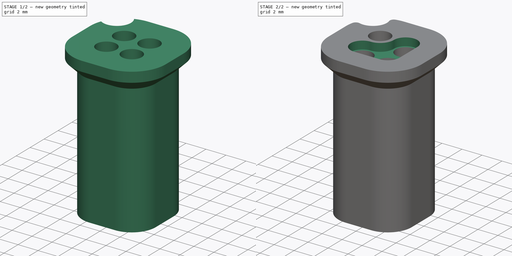
[diagram: build sequence overview — one tinted view per stage of 2, left to right]
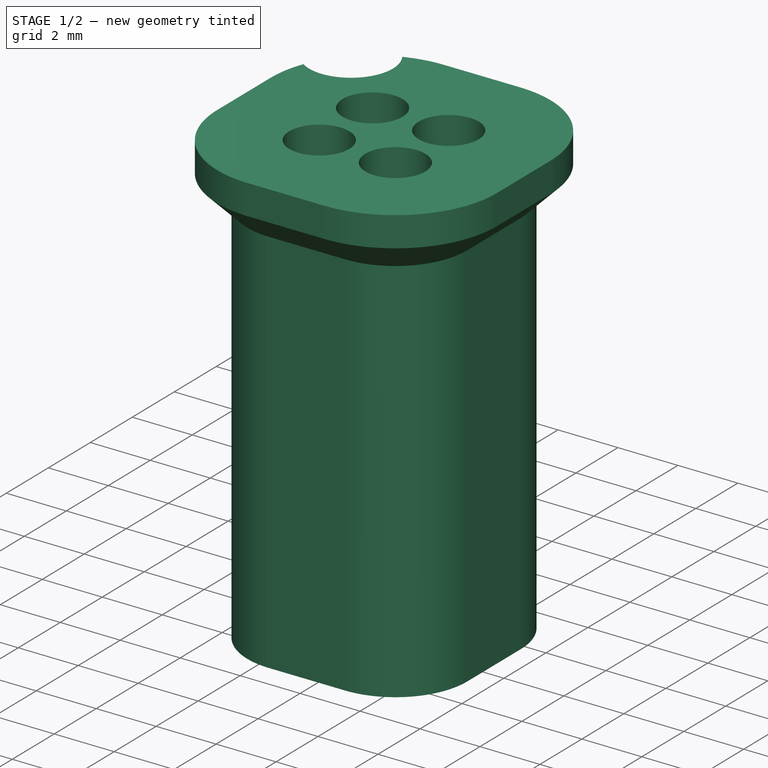
[diagram: stage 1 of 2 — iso view after this stage's code; geometry added in this stage tinted green]
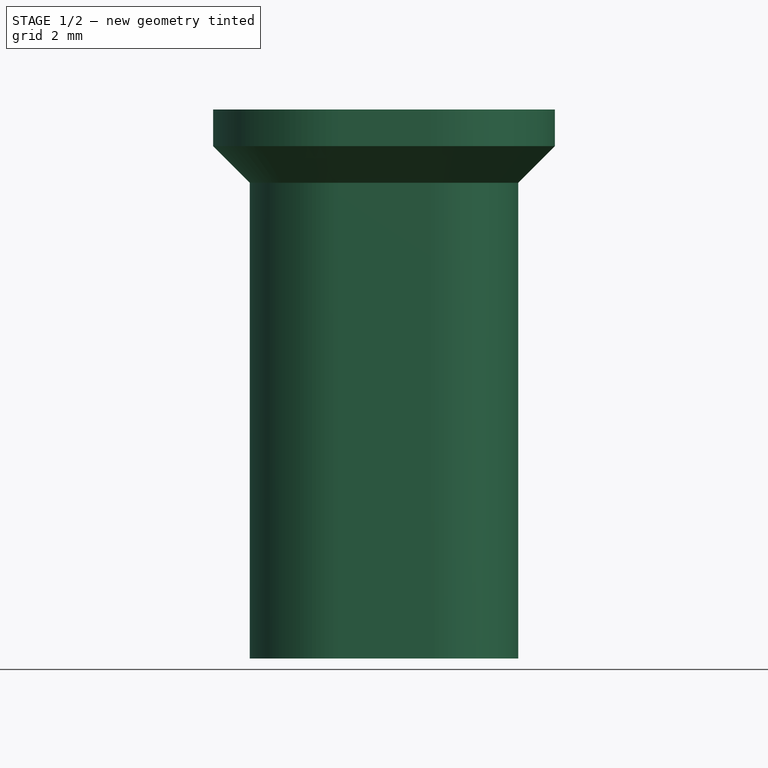
[diagram: stage 1 of 2 — front view after this stage's code; geometry added in this stage tinted green]
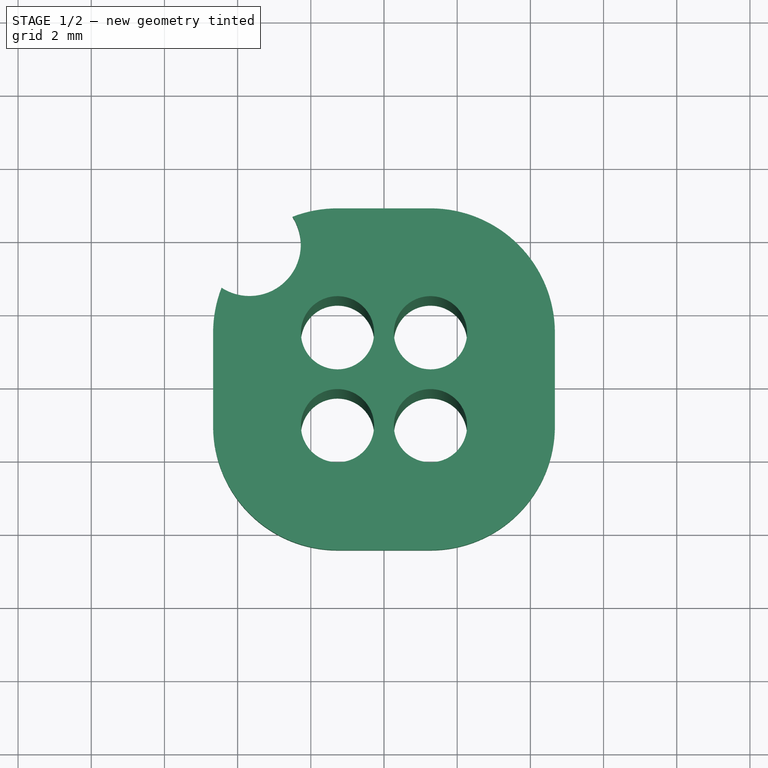
[diagram: stage 1 of 2 — top view after this stage's code; geometry added in this stage tinted green]
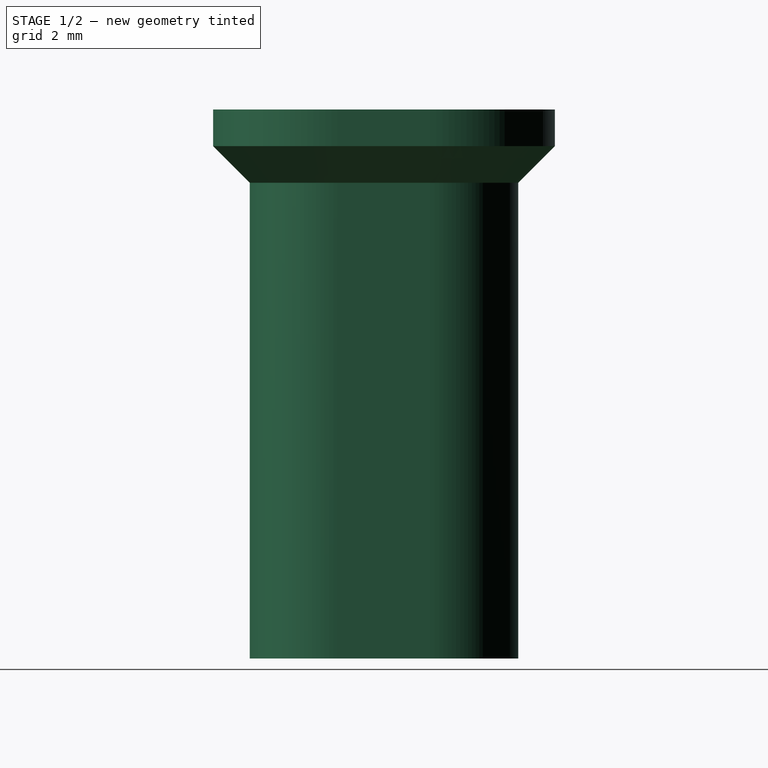
[diagram: stage 1 of 2 — right view after this stage's code; geometry added in this stage tinted green]
FCSTD DOCUMENT  (FreeCAD 0.20R29410 (Git))
Label: DabiProgAdapter
License: All rights reserved
LicenseURL: http://en.wikipedia.org/wiki/All_rights_reserved
objects: Sketcher::SketchObject×7, PartDesign::Pocket×2, Spreadsheet::Sheet×1, PartDesign::AdditiveLoft×1, PartDesign::Fillet×1, PartDesign::Body×1
note: 16 computed .brp shape members not serialized (recipe doc carries the construction recipe); baked Part::Feature solids carry a one-line shape summary decoded from their .brp

FEATURE [Spreadsheet::Sheet] Spreadsheet
  cells = B2=Spacing; C2(Spacing)==2.54mm; B3=PinRadius; C3(PinRadius)==1mm; B4=PinRadius_Extended; C4(PinRadius_Extended)==1.18mm; B5=BaseRadius; C5(BaseRadius)==2.4mm; B6=BaseRadius_Top; C6(BaseRadius_Top)==3.4mm; B7=BaseHeight; C7(BaseHeight)==13mm; B8=BaseTopHeight; C8(BaseTopHeight)==1mm; B9=TopDepressionHeight; C9(TopDepressionHeight)==0.8mm
FEATURE [Sketcher::SketchObject] Sketch  label="Template"
  FullyConstrained = true
  MapMode = 5
  Support = -> [XY_Plane]
  expr: Constraints[18] = <<Spreadsheet>>.PinRadius
  expr: Constraints[24] = <<Spreadsheet>>.BaseRadius
  expr: Constraints[63] = <<Spreadsheet>>.PinRadius_Extended
  expr: Constraints[76] = <<Spreadsheet>>.BaseRadius_Top
  expr: Constraints[86] = (<<Spreadsheet>>.BaseRadius_Top - <<Spreadsheet>>.BaseRadius) * 1.4
  expr: Constraints[9] = <<Spreadsheet>>.Spacing
  sketch-geometry (32):
    g0: LineSegment StartX=-1.27 StartY=1.27 StartZ=0 EndX=1.27 EndY=1.27 EndZ=0
    g1: LineSegment StartX=1.27 StartY=1.27 StartZ=0 EndX=1.27 EndY=-1.27 EndZ=0
    g2: LineSegment StartX=1.27 StartY=-1.27 StartZ=0 EndX=-1.27 EndY=-1.27 EndZ=0
    g3: LineSegment StartX=-1.27 StartY=-1.27 StartZ=0 EndX=-1.27 EndY=1.27 EndZ=0
    g4: Circle CenterX=-1.27 CenterY=1.27 CenterZ=0 NormalX=0 NormalY=0 NormalZ=1 AngleXU=0 Radius=1
    g5: Circle CenterX=1.27 CenterY=1.27 CenterZ=0 NormalX=0 NormalY=0 NormalZ=1 AngleXU=0 Radius=1
    g6: Circle CenterX=1.27 CenterY=-1.27 CenterZ=0 NormalX=0 NormalY=0 NormalZ=1 AngleXU=0 Radius=1
    g7: Circle CenterX=-1.27 CenterY=-1.27 CenterZ=0 NormalX=0 NormalY=0 NormalZ=1 AngleXU=0 Radius=1
    g8: ArcOfCircle CenterX=1.27 CenterY=1.27 CenterZ=0 NormalX=0 NormalY=0 NormalZ=1 AngleXU=0 Radius=2.4 StartAngle=-1.528e-13 EndAngle=1.5708
    g9: ArcOfCircle CenterX=1.27 CenterY=-1.27 CenterZ=0 NormalX=0 NormalY=0 NormalZ=1 AngleXU=0 Radius=2.4 StartAngle=4.71239 EndAngle=6.28319
    g10: ArcOfCircle CenterX=-1.27 CenterY=-1.27 CenterZ=0 NormalX=0 NormalY=0 NormalZ=1 AngleXU=0 Radius=2.4 StartAngle=3.14159 EndAngle=4.71239
    g11: LineSegment StartX=3.67 StartY=1.27 StartZ=0 EndX=3.67 EndY=-1.27 EndZ=0
    g12: LineSegment StartX=1.27 StartY=-3.67 StartZ=0 EndX=-1.27 EndY=-3.67 EndZ=0
    g13: LineSegment StartX=-3.67 StartY=-1.27 StartZ=0 EndX=-3.67 EndY=1.27 EndZ=0
    g14: LineSegment StartX=1.27 StartY=3.67 StartZ=0 EndX=-1.27 EndY=3.67 EndZ=0
    g15: ArcOfCircle CenterX=1.27 CenterY=1.27 CenterZ=0 NormalX=0 NormalY=0 NormalZ=1 AngleXU=0 Radius=3.4 StartAngle=-1.075e-13 EndAngle=1.5708
    g16: ArcOfCircle CenterX=1.27 CenterY=-1.27 CenterZ=0 NormalX=0 NormalY=0 NormalZ=1 AngleXU=0 Radius=3.4 StartAngle=4.71239 EndAngle=6.28319
    g17: ArcOfCircle CenterX=-1.27 CenterY=-1.27 CenterZ=0 NormalX=0 NormalY=0 NormalZ=1 AngleXU=0 Radius=3.4 StartAngle=3.14159 EndAngle=4.71239
    g18: LineSegment StartX=4.67 StartY=1.27 StartZ=0 EndX=4.67 EndY=-1.27 EndZ=0
    g19: LineSegment StartX=-1.27 StartY=-4.67 StartZ=0 EndX=1.27 EndY=-4.67 EndZ=0
    g20: LineSegment StartX=-4.67 StartY=-1.27 StartZ=0 EndX=-4.67 EndY=1.27 EndZ=0
    g21: LineSegment StartX=-1.27 StartY=4.67 StartZ=0 EndX=1.27 EndY=4.67 EndZ=0
    g22: ArcOfCircle CenterX=1.27 CenterY=1.27 CenterZ=0 NormalX=0 NormalY=0 NormalZ=1 AngleXU=0 Radius=1.18 StartAngle=-3.215e-13 EndAngle=3.14159
    g23: ArcOfCircle CenterX=1.27 CenterY=-1.27 CenterZ=0 NormalX=0 NormalY=0 NormalZ=1 AngleXU=0 Radius=1.18 StartAngle=4.71239 EndAngle=6.28319
    g24: ArcOfCircle CenterX=-1.27 CenterY=-1.27 CenterZ=0 NormalX=0 NormalY=0 NormalZ=1 AngleXU=0 Radius=1.18 StartAngle=1.5708 EndAngle=4.71239
    g25: LineSegment StartX=2.45 StartY=1.27 StartZ=0 EndX=2.45 EndY=-1.27 EndZ=0
    g26: LineSegment StartX=-1.27 StartY=-2.45 StartZ=0 EndX=1.27 EndY=-2.45 EndZ=0
    g27: ArcOfCircle CenterX=-1.27 CenterY=1.27 CenterZ=0 NormalX=0 NormalY=0 NormalZ=1 AngleXU=0 Radius=1.36 StartAngle=4.71239 EndAngle=6.28319
    g28: ArcOfCircle CenterX=-1.27 CenterY=1.27 CenterZ=0 NormalX=0 NormalY=0 NormalZ=1 AngleXU=0 Radius=2.4 StartAngle=1.5708 EndAngle=3.14159
    g29: ArcOfCircle CenterX=-1.27 CenterY=1.27 CenterZ=0 NormalX=0 NormalY=0 NormalZ=1 AngleXU=0 Radius=3.4 StartAngle=1.5708 EndAngle=3.14159
    g30: ArcOfCircle CenterX=-3.67416 CenterY=3.67416 CenterZ=0 NormalX=0 NormalY=0 NormalZ=1 AngleXU=0 Radius=1.4 StartAngle=4.13436 EndAngle=6.86122
    g31: LineSegment StartX=-3.67416 StartY=3.67416 StartZ=0 EndX=1.27 EndY=-1.27 EndZ=0
  constraints (91):
    c: Coincident(g0,g1)
    c: Coincident(g1,g2)
    c: Coincident(g2,g3)
    c: Coincident(g3,g0)
    c: Horizontal(g0)
    c: Horizontal(g2)
    c: Vertical(g1)
    c: Vertical(g3)
    c: Equal(g0,g3)
    c: DistanceX(g0,g0) = 2.54
    c: Symmetric(g2,g0,g-1)  '__ANCHOR__'
    c: Coincident(g4,g0)
    c: Coincident(g5,g0)
    c: Coincident(g6,g1)
    c: Coincident(g7,g2)
    c: Equal(g4,g5)
    c: Equal(g5,g6)
    c: Equal(g6,g7)
    c: Radius(g4) = 1
    c: Coincident(g8,g0)
    c: Coincident(g9,g1)
    c: Coincident(g10,g2)
    c: Equal(g8,g9)
    c: Equal(g9,g10)
    c: Radius(g8) = 2.4
    c: PointOnObject(g8,g1)
    c: PointOnObject(g9,g1)
    c: PointOnObject(g9,g2)
    c: PointOnObject(g10,g2)
    c: PointOnObject(g10,g3)
    c: PointOnObject(g8,g0)
    c: Coincident(g11,g8)
    c: Coincident(g11,g9)
    c: Coincident(g12,g9)
    c: Coincident(g12,g10)
    c: Coincident(g13,g10)
    c: Vertical(g13)
    c: Coincident(g14,g8)
    c: Coincident(g15,g0)
    c: Coincident(g16,g1)
    c: Coincident(g17,g2)
    c: Equal(g17,g16)
    c: Equal(g16,g15)
    c: Coincident(g18,g15)
    c: Coincident(g18,g16)
    c: Coincident(g19,g17)
    c: Coincident(g19,g16)
    c: Horizontal(g19)
    c: PointOnObject(g15,g0)
    c: PointOnObject(g16,g2)
    c: PointOnObject(g17,g2)
    c: PointOnObject(g17,g3)
    c: Coincident(g20,g17)
    c: Coincident(g21,g15)
    c: Coincident(g22,g5)
    c: Coincident(g23,g6)
    c: Coincident(g24,g7)
    c: Equal(g24,g23)
    c: Equal(g23,g22)
    c: PointOnObject(g22,g0)
    c: PointOnObject(g23,g2)
    c: Coincident(g25,g22)
    c: Coincident(g25,g23)
    c: Radius(g24) = 1.18
    c: PointOnObject(g24,g3)
    c: PointOnObject(g23,g1)
    c: PointOnObject(g24,g3)
    c: Coincident(g26,g24)
    c: Coincident(g26,g23)
    c: Tangent(g27,g24) = 1.5708
    c: Tangent(g27,g22) = 1.5708
    c: Coincident(g28,g4)
    c: PointOnObject(g28,g0)
    c: PointOnObject(g28,g3)
    c: Coincident(g13,g28)
    c: Coincident(g14,g28)
    c: Radius(g15) = 3.4
    c: Coincident(g29,g4)
    c: Coincident(g29,g21)
    c: Coincident(g29,g20)
    c: PointOnObject(g20,g0)
    c: PointOnObject(g21,g3)
    c: Equal(g29,g17)
    c: PointOnObject(g15,g1)
    c: Coincident(g31,g6)
    c: PointOnObject(g4,g31)
    c: Radius(g30) = 1.4
    c: PointOnObject(g31,g29)
    c: Coincident(g30,g31)
    c: PointOnObject(g30,g29)
    c: PointOnObject(g30,g29)
FEATURE [Sketcher::SketchObject] Sketch001
  ExternalGeometry = -> [Sketch]
  FullyConstrained = true
  MapMode = 5
  Support = -> [XY_Plane]
  sketch-geometry (12):
    g0: Circle CenterX=-1.27 CenterY=1.27 CenterZ=0 NormalX=0 NormalY=0 NormalZ=1 AngleXU=0 Radius=1
    g1: Circle CenterX=1.27 CenterY=1.27 CenterZ=0 NormalX=0 NormalY=0 NormalZ=1 AngleXU=0 Radius=1
    g2: Circle CenterX=1.27 CenterY=-1.27 CenterZ=0 NormalX=0 NormalY=0 NormalZ=1 AngleXU=0 Radius=1
    g3: Circle CenterX=-1.27 CenterY=-1.27 CenterZ=0 NormalX=0 NormalY=0 NormalZ=1 AngleXU=0 Radius=1
    g4: ArcOfCircle CenterX=-1.27 CenterY=1.27 CenterZ=0 NormalX=0 NormalY=0 NormalZ=1 AngleXU=0 Radius=2.4 StartAngle=1.5708 EndAngle=3.14159
    g5: ArcOfCircle CenterX=1.27 CenterY=1.27 CenterZ=0 NormalX=0 NormalY=0 NormalZ=1 AngleXU=0 Radius=2.4 StartAngle=2.6288e-12 EndAngle=1.5708
    g6: ArcOfCircle CenterX=1.27 CenterY=-1.27 CenterZ=0 NormalX=0 NormalY=0 NormalZ=1 AngleXU=0 Radius=2.4 StartAngle=4.71239 EndAngle=6.28319
    g7: ArcOfCircle CenterX=-1.27 CenterY=-1.27 CenterZ=0 NormalX=0 NormalY=0 NormalZ=1 AngleXU=0 Radius=2.4 StartAngle=3.14159 EndAngle=4.71239
    g8: LineSegment StartX=-3.67 StartY=1.27 StartZ=0 EndX=-3.67 EndY=-1.27 EndZ=0
    g9: LineSegment StartX=-1.27 StartY=3.67 StartZ=0 EndX=1.27 EndY=3.67 EndZ=0
    g10: LineSegment StartX=3.67 StartY=1.27 StartZ=0 EndX=3.67 EndY=-1.27 EndZ=0
    g11: LineSegment StartX=-1.27 StartY=-3.67 StartZ=0 EndX=1.27 EndY=-3.67 EndZ=0
  constraints (28):
    c: Coincident(g0,g-8)
    c: Coincident(g1,g-9)
    c: Coincident(g2,g-10)
    c: Coincident(g3,g-7)
    c: Equal(g-8,g0)
    c: Equal(g-7,g3)
    c: Equal(g-10,g2)
    c: Equal(g-9,g1)
    c: Coincident(g4,g-3)
    c: Coincident(g4,g-3)
    c: Coincident(g5,g-4)
    c: Coincident(g5,g-4)
    c: Coincident(g6,g-5)
    c: Coincident(g6,g-5)
    c: Coincident(g7,g-6)
    c: Coincident(g7,g-6)
    c: Equal(g-3,g4)
    c: Equal(g-4,g5)
    c: Equal(g-5,g6)
    c: Equal(g-6,g7)
    c: Coincident(g8,g4)
    c: Coincident(g8,g7)
    c: Coincident(g9,g4)
    c: Coincident(g9,g5)
    c: Coincident(g10,g5)
    c: Coincident(g10,g6)
    c: Coincident(g11,g7)
    c: Coincident(g11,g6)
FEATURE [Sketcher::SketchObject] Sketch002
  AttachmentOffset = pos=(0,0,13) rot=(0,0,1;0rad)
  ExternalGeometry = -> [Sketch]
  FullyConstrained = true
  MapMode = 5
  Placement = pos=(0,0,13) rot=(0,0,1;0rad)
  Support = -> [XY_Plane]
  expr: .AttachmentOffset.Base.z = <<Spreadsheet>>.BaseHeight
  sketch-geometry (12):
    g0: Circle CenterX=-1.27 CenterY=1.27 CenterZ=0 NormalX=0 NormalY=0 NormalZ=1 AngleXU=0 Radius=1
    g1: Circle CenterX=1.27 CenterY=1.27 CenterZ=0 NormalX=0 NormalY=0 NormalZ=1 AngleXU=0 Radius=1
    g2: Circle CenterX=1.27 CenterY=-1.27 CenterZ=0 NormalX=0 NormalY=0 NormalZ=1 AngleXU=0 Radius=1
    g3: Circle CenterX=-1.27 CenterY=-1.27 CenterZ=0 NormalX=0 NormalY=0 NormalZ=1 AngleXU=0 Radius=1
    g4: ArcOfCircle CenterX=-1.27 CenterY=1.27 CenterZ=0 NormalX=0 NormalY=0 NormalZ=1 AngleXU=0 Radius=2.4 StartAngle=1.5708 EndAngle=3.14159
    g5: ArcOfCircle CenterX=1.27 CenterY=1.27 CenterZ=0 NormalX=0 NormalY=0 NormalZ=1 AngleXU=0 Radius=2.4 StartAngle=2.6288e-12 EndAngle=1.5708
    g6: ArcOfCircle CenterX=1.27 CenterY=-1.27 CenterZ=0 NormalX=0 NormalY=0 NormalZ=1 AngleXU=0 Radius=2.4 StartAngle=4.71239 EndAngle=6.28319
    g7: ArcOfCircle CenterX=-1.27 CenterY=-1.27 CenterZ=0 NormalX=0 NormalY=0 NormalZ=1 AngleXU=0 Radius=2.4 StartAngle=3.14159 EndAngle=4.71239
    g8: LineSegment StartX=-3.67 StartY=1.27 StartZ=0 EndX=-3.67 EndY=-1.27 EndZ=0
    g9: LineSegment StartX=-1.27 StartY=3.67 StartZ=0 EndX=1.27 EndY=3.67 EndZ=0
    g10: LineSegment StartX=3.67 StartY=1.27 StartZ=0 EndX=3.67 EndY=-1.27 EndZ=0
    g11: LineSegment StartX=-1.27 StartY=-3.67 StartZ=0 EndX=1.27 EndY=-3.67 EndZ=0
  constraints (28):
    c: Coincident(g0,g-8)
    c: Coincident(g1,g-9)
    c: Coincident(g2,g-10)
    c: Coincident(g3,g-7)
    c: Equal(g-8,g0)
    c: Equal(g-7,g3)
    c: Equal(g-10,g2)
    c: Equal(g-9,g1)
    c: Coincident(g4,g-3)
    c: Coincident(g4,g-3)
    c: Coincident(g5,g-4)
    c: Coincident(g5,g-4)
    c: Coincident(g6,g-5)
    c: Coincident(g6,g-5)
    c: Coincident(g7,g-6)
    c: Coincident(g7,g-6)
    c: Equal(g-3,g4)
    c: Equal(g-4,g5)
    c: Equal(g-5,g6)
    c: Equal(g-6,g7)
    c: Coincident(g8,g4)
    c: Coincident(g8,g7)
    c: Coincident(g9,g4)
    c: Coincident(g9,g5)
    c: Coincident(g10,g5)
    c: Coincident(g10,g6)
    c: Coincident(g11,g7)
    c: Coincident(g11,g6)
FEATURE [Sketcher::SketchObject] Sketch003
  AttachmentOffset = pos=(0,0,14) rot=(0,0,1;0rad)
  ExternalGeometry = -> [Sketch]
  FullyConstrained = true
  MapMode = 5
  Placement = pos=(0,0,14) rot=(0,0,1;0rad)
  Support = -> [XY_Plane]
  expr: .AttachmentOffset.Base.z = <<Sketch002>>.AttachmentOffset.Base.z + <<Spreadsheet>>.BaseRadius_Top - <<Spreadsheet>>.BaseRadius
  sketch-geometry (12):
    g0: Circle CenterX=-1.27 CenterY=1.27 CenterZ=0 NormalX=0 NormalY=0 NormalZ=1 AngleXU=0 Radius=1
    g1: Circle CenterX=1.27 CenterY=1.27 CenterZ=0 NormalX=0 NormalY=0 NormalZ=1 AngleXU=0 Radius=1
    g2: Circle CenterX=1.27 CenterY=-1.27 CenterZ=0 NormalX=0 NormalY=0 NormalZ=1 AngleXU=0 Radius=1
    g3: Circle CenterX=-1.27 CenterY=-1.27 CenterZ=0 NormalX=0 NormalY=0 NormalZ=1 AngleXU=0 Radius=1
    g4: ArcOfCircle CenterX=-1.27 CenterY=1.27 CenterZ=0 NormalX=0 NormalY=0 NormalZ=1 AngleXU=0 Radius=3.4 StartAngle=1.5708 EndAngle=3.14159
    g5: ArcOfCircle CenterX=1.27 CenterY=1.27 CenterZ=0 NormalX=0 NormalY=0 NormalZ=1 AngleXU=0 Radius=3.4 StartAngle=1.104e-12 EndAngle=1.5708
    g6: ArcOfCircle CenterX=1.27 CenterY=-1.27 CenterZ=0 NormalX=0 NormalY=0 NormalZ=1 AngleXU=0 Radius=3.4 StartAngle=4.71239 EndAngle=6.28319
    g7: ArcOfCircle CenterX=-1.27 CenterY=-1.27 CenterZ=0 NormalX=0 NormalY=0 NormalZ=1 AngleXU=0 Radius=3.4 StartAngle=3.14159 EndAngle=4.71239
    g8: LineSegment StartX=-4.67 StartY=1.27 StartZ=0 EndX=-4.67 EndY=-1.27 EndZ=0
    g9: LineSegment StartX=-1.27 StartY=4.67 StartZ=0 EndX=1.27 EndY=4.67 EndZ=0
    g10: LineSegment StartX=4.67 StartY=1.27 StartZ=0 EndX=4.67 EndY=-1.27 EndZ=0
    g11: LineSegment StartX=-1.27 StartY=-4.67 StartZ=0 EndX=1.27 EndY=-4.67 EndZ=0
  constraints (28):
    c: Coincident(g0,g-4)
    c: Coincident(g1,g-5)
    c: Coincident(g2,g-6)
    c: Coincident(g3,g-3)
    c: Equal(g-4,g0)
    c: Equal(g-3,g3)
    c: Equal(g-6,g2)
    c: Equal(g-5,g1)
    c: Coincident(g8,g4)
    c: Coincident(g8,g7)
    c: Coincident(g9,g4)
    c: Coincident(g9,g5)
    c: Coincident(g10,g5)
    c: Coincident(g10,g6)
    c: Coincident(g11,g7)
    c: Coincident(g11,g6)
    c: Equal(g-7,g4)
    c: Equal(g-8,g5)
    c: Equal(g-9,g6)
    c: Equal(g-10,g7)
    c: Coincident(g7,g-10)
    c: Coincident(g4,g-7)
    c: Coincident(g4,g-7)
    c: Coincident(g5,g-8)
    c: Coincident(g5,g-8)
    c: Coincident(g6,g-9)
    c: Coincident(g6,g-9)
    c: Coincident(g7,g-10)
FEATURE [Sketcher::SketchObject] Sketch004
  AttachmentOffset = pos=(0,0,15) rot=(0,0,1;0rad)
  ExternalGeometry = -> [Sketch]
  FullyConstrained = true
  MapMode = 5
  Placement = pos=(0,0,15) rot=(0,0,1;0rad)
  Support = -> [XY_Plane]
  expr: .AttachmentOffset.Base.z = <<Sketch003>>.AttachmentOffset.Base.z + <<Spreadsheet>>.BaseTopHeight
  sketch-geometry (12):
    g0: Circle CenterX=-1.27 CenterY=1.27 CenterZ=0 NormalX=0 NormalY=0 NormalZ=1 AngleXU=0 Radius=1
    g1: Circle CenterX=1.27 CenterY=1.27 CenterZ=0 NormalX=0 NormalY=0 NormalZ=1 AngleXU=0 Radius=1
    g2: Circle CenterX=1.27 CenterY=-1.27 CenterZ=0 NormalX=0 NormalY=0 NormalZ=1 AngleXU=0 Radius=1
    g3: Circle CenterX=-1.27 CenterY=-1.27 CenterZ=0 NormalX=0 NormalY=0 NormalZ=1 AngleXU=0 Radius=1
    g4: ArcOfCircle CenterX=-1.27 CenterY=1.27 CenterZ=0 NormalX=0 NormalY=0 NormalZ=1 AngleXU=0 Radius=3.4 StartAngle=1.5708 EndAngle=3.14159
    g5: ArcOfCircle CenterX=1.27 CenterY=1.27 CenterZ=0 NormalX=0 NormalY=0 NormalZ=1 AngleXU=0 Radius=3.4 StartAngle=1.104e-12 EndAngle=1.5708
    g6: ArcOfCircle CenterX=1.27 CenterY=-1.27 CenterZ=0 NormalX=0 NormalY=0 NormalZ=1 AngleXU=0 Radius=3.4 StartAngle=4.71239 EndAngle=6.28319
    g7: ArcOfCircle CenterX=-1.27 CenterY=-1.27 CenterZ=0 NormalX=0 NormalY=0 NormalZ=1 AngleXU=0 Radius=3.4 StartAngle=3.14159 EndAngle=4.71239
    g8: LineSegment StartX=-4.67 StartY=1.27 StartZ=0 EndX=-4.67 EndY=-1.27 EndZ=0
    g9: LineSegment StartX=-1.27 StartY=4.67 StartZ=0 EndX=1.27 EndY=4.67 EndZ=0
    g10: LineSegment StartX=4.67 StartY=1.27 StartZ=0 EndX=4.67 EndY=-1.27 EndZ=0
    g11: LineSegment StartX=-1.27 StartY=-4.67 StartZ=0 EndX=1.27 EndY=-4.67 EndZ=0
  constraints (28):
    c: Coincident(g0,g-4)
    c: Coincident(g1,g-5)
    c: Coincident(g2,g-6)
    c: Coincident(g3,g-3)
    c: Equal(g-4,g0)
    c: Equal(g-3,g3)
    c: Equal(g-6,g2)
    c: Equal(g-5,g1)
    c: Coincident(g8,g4)
    c: Coincident(g8,g7)
    c: Coincident(g9,g4)
    c: Coincident(g9,g5)
    c: Coincident(g10,g5)
    c: Coincident(g10,g6)
    c: Coincident(g11,g7)
    c: Coincident(g11,g6)
    c: Equal(g-7,g4)
    c: Equal(g-8,g5)
    c: Equal(g-9,g6)
    c: Equal(g-10,g7)
    c: Coincident(g7,g-10)
    c: Coincident(g4,g-7)
    c: Coincident(g4,g-7)
    c: Coincident(g5,g-8)
    c: Coincident(g5,g-8)
    c: Coincident(g6,g-9)
    c: Coincident(g6,g-9)
    c: Coincident(g7,g-10)
FEATURE [PartDesign::AdditiveLoft] AdditiveLoft
  Closed = false
  Profile = -> Sketch001
  Ruled = true
  Sections = -> [Sketch002,Sketch003,Sketch004]
FEATURE [Sketcher::SketchObject] Sketch005
  ExternalGeometry = -> [Sketch]
  FullyConstrained = true
  MapMode = 5
  Support = -> [XY_Plane]
  sketch-geometry (2):
    g0: ArcOfCircle CenterX=-3.67416 CenterY=3.67416 CenterZ=0 NormalX=0 NormalY=0 NormalZ=1 AngleXU=0 Radius=1.4 StartAngle=4.13436 EndAngle=6.86122
    g1: ArcOfCircle CenterX=-1.27 CenterY=1.27 CenterZ=0 NormalX=0 NormalY=0 NormalZ=1 AngleXU=0 Radius=3.4 StartAngle=1.94146 EndAngle=2.77093
  constraints (6):
    c: Coincident(g0,g-4)
    c: Coincident(g0,g-4)
    c: Coincident(g1,g0)
    c: Coincident(g1,g0)
    c: Equal(g0,g-4)
    c: Equal(g1,g-3)
FEATURE [PartDesign::Pocket] Pocket
  BaseFeature = -> AdditiveLoft
  Direction = (0,0,-1)
  Length = 5
  Length2 = 5
  Profile = -> Sketch005
  ReferenceAxis = -> Sketch005 [N_Axis]
  Refine = true
  Reversed = true
  Type = 1
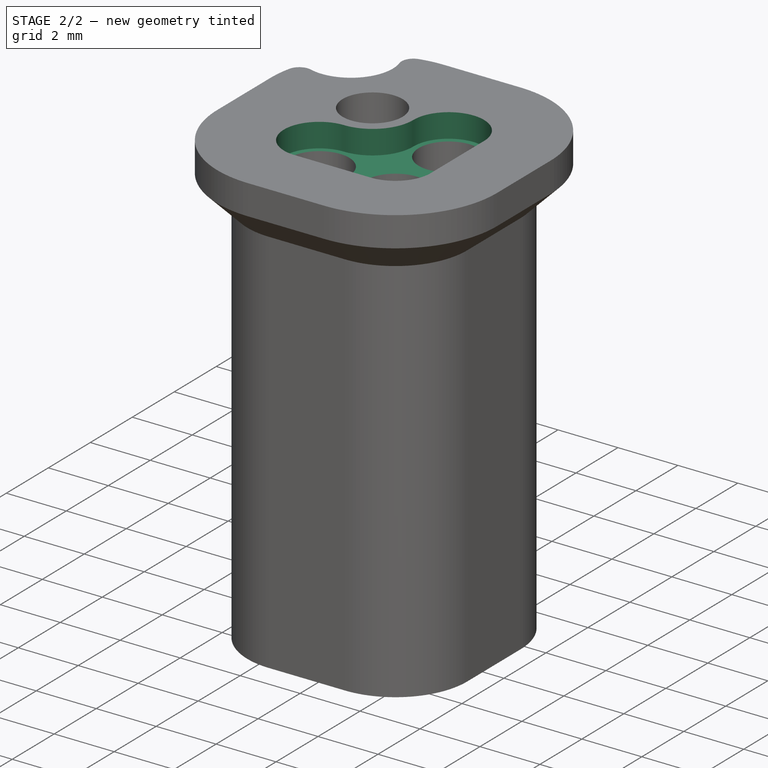
[diagram: stage 2 of 2 — iso view after this stage's code; geometry added in this stage tinted green]
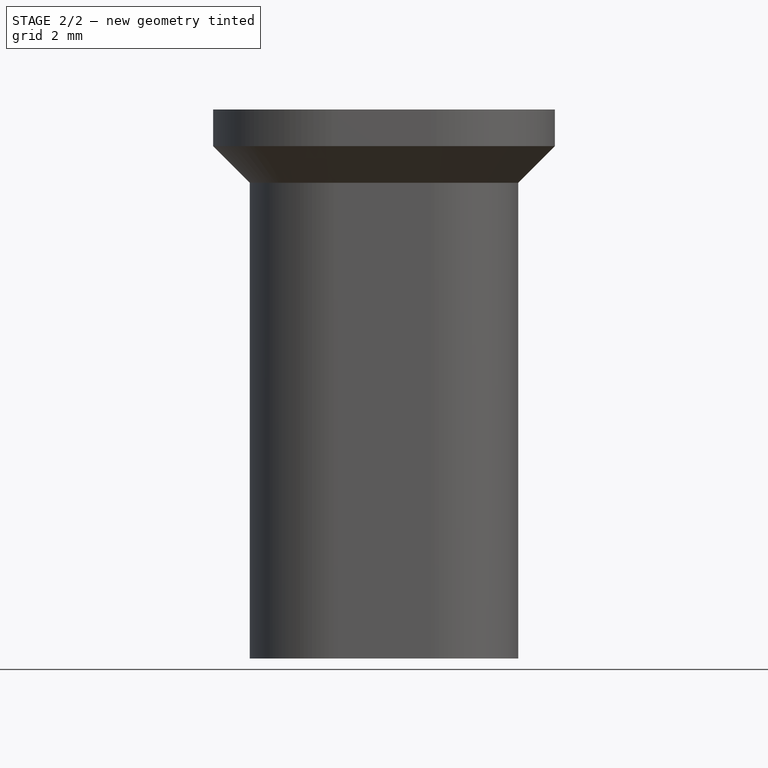
[diagram: stage 2 of 2 — front view after this stage's code; geometry added in this stage tinted green]
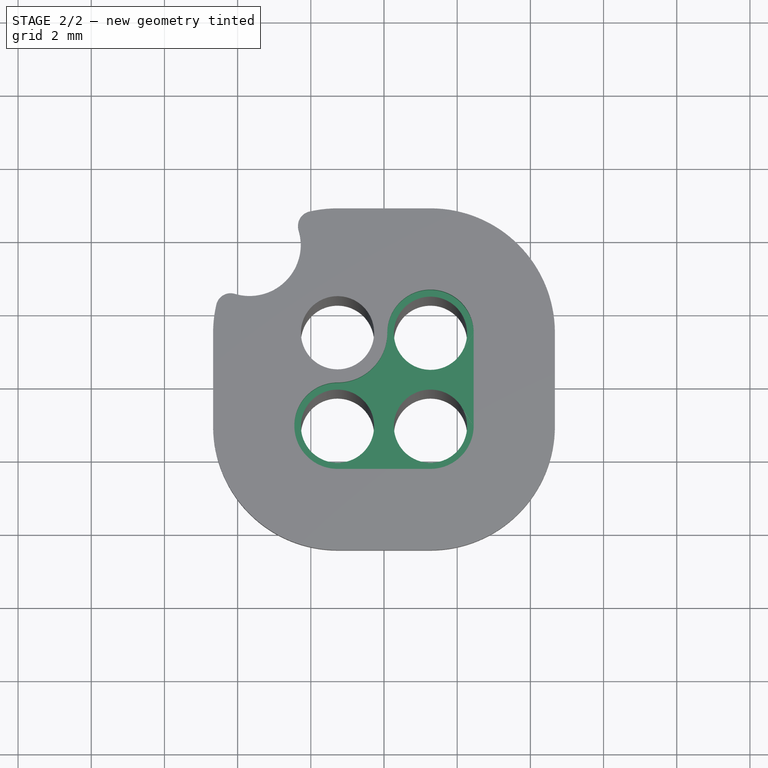
[diagram: stage 2 of 2 — top view after this stage's code; geometry added in this stage tinted green]
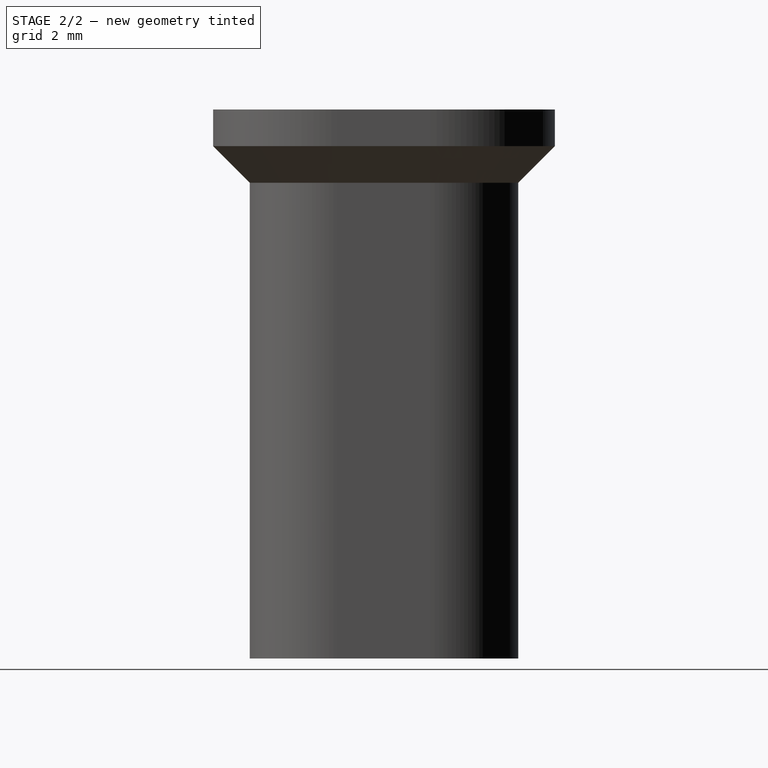
[diagram: stage 2 of 2 — right view after this stage's code; geometry added in this stage tinted green]
FEATURE [PartDesign::Fillet] Fillet
  Base = -> Pocket [Edge36,Edge35,Edge34,Edge33,Edge30,Edge32,Edge38]
  BaseFeature = -> Pocket
  Radius = 0.4
  SupportTransform = false
  UseAllEdges = false
FEATURE [Sketcher::SketchObject] Sketch006
  AttachmentOffset = pos=(0,0,15) rot=(0,0,1;0rad)
  ExternalGeometry = -> [Sketch]
  FullyConstrained = true
  MapMode = 5
  Placement = pos=(0,0,15) rot=(0,0,1;0rad)
  Support = -> [XY_Plane]
  expr: .AttachmentOffset.Base.z = <<Sketch004>>.AttachmentOffset.Base.z
  sketch-geometry (6):
    g0: ArcOfCircle CenterX=-1.27 CenterY=1.27 CenterZ=0 NormalX=0 NormalY=0 NormalZ=1 AngleXU=0 Radius=1.36 StartAngle=4.71239 EndAngle=6.28319
    g1: ArcOfCircle CenterX=1.27 CenterY=1.26999 CenterZ=0 NormalX=0 NormalY=0 NormalZ=1 AngleXU=0 Radius=1.18 StartAngle=7.39272e-06 EndAngle=3.14159
    g2: ArcOfCircle CenterX=1.27 CenterY=-1.27 CenterZ=0 NormalX=0 NormalY=0 NormalZ=1 AngleXU=0 Radius=1.18 StartAngle=4.71239 EndAngle=6.28319
    g3: ArcOfCircle CenterX=-1.26999 CenterY=-1.27 CenterZ=0 NormalX=0 NormalY=0 NormalZ=1 AngleXU=0 Radius=1.18 StartAngle=1.57081 EndAngle=4.71238
    g4: LineSegment StartX=-1.27 StartY=-2.45 StartZ=0 EndX=1.27 EndY=-2.45 EndZ=0
    g5: LineSegment StartX=2.45 StartY=-1.27 StartZ=0 EndX=2.45 EndY=1.27 EndZ=0
  constraints (16):
    c: Coincident(g0,g-6)
    c: Coincident(g0,g-6)
    c: Coincident(g1,g0)
    c: Coincident(g1,g-3)
    c: Coincident(g2,g-4)
    c: Coincident(g2,g-4)
    c: Coincident(g3,g-5)
    c: Coincident(g3,g0)
    c: Equal(g-6,g0)
    c: Equal(g-3,g1)
    c: Equal(g-4,g2)
    c: Equal(g-5,g3)
    c: Coincident(g4,g3)
    c: Coincident(g4,g2)
    c: Coincident(g5,g2)
    c: Coincident(g5,g1)
FEATURE [PartDesign::Pocket] Pocket001
  BaseFeature = -> Fillet
  Direction = (0,0,-1)
  Length = 0.8
  Length2 = 5
  Profile = -> Sketch006
  ReferenceAxis = -> Sketch006 [N_Axis]
  Type = 0
  expr: Length = <<Spreadsheet>>.TopDepressionHeight
FEATURE [PartDesign::Body] Body
  Group = -> [Sketch,Sketch001,Sketch002,Sketch003,Sketch004,AdditiveLoft,Sketch005,Pocket,Fillet,Sketch006,Pocket001]
  Origin = -> Origin
  Tip = -> Pocket001
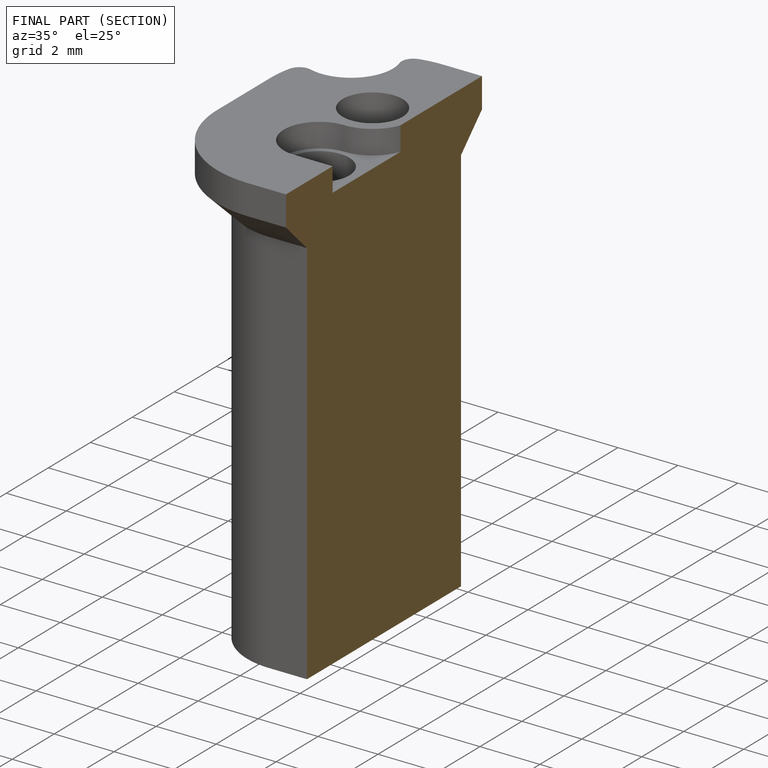
[diagram: finished part — half-section view (interior)]
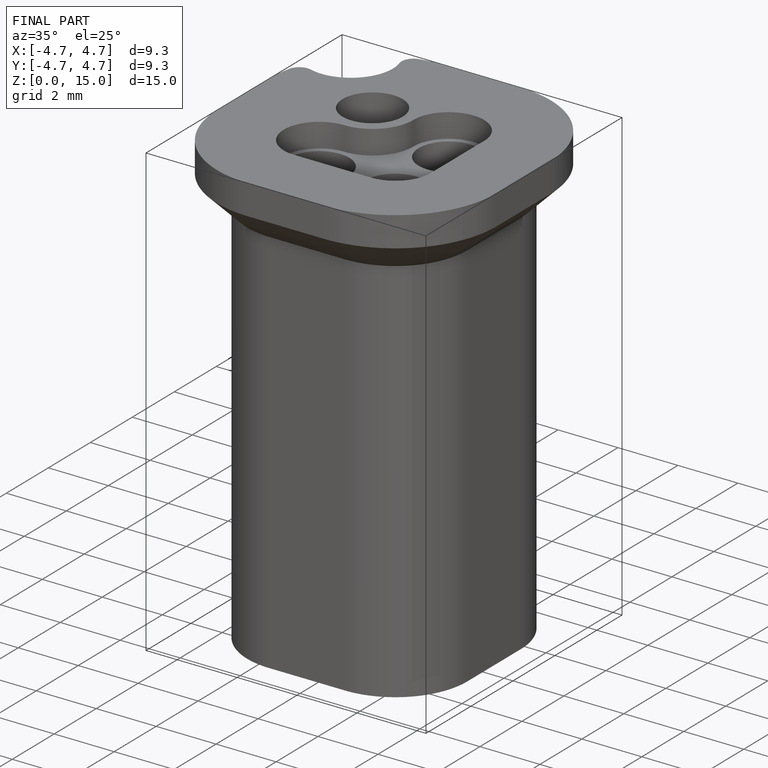
[diagram: finished part — iso view with bounding-box wireframe]
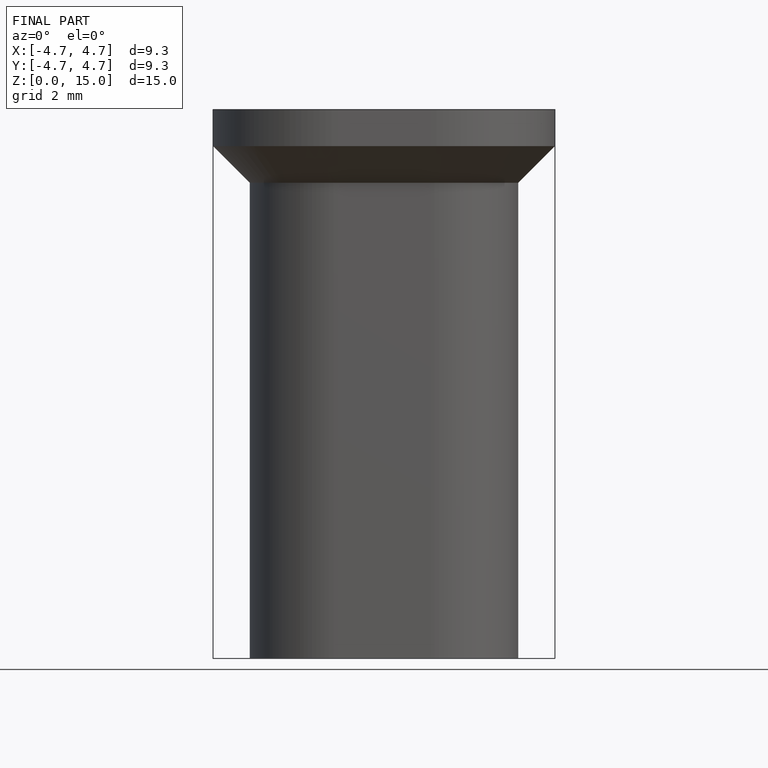
[diagram: finished part — front view with bounding-box wireframe]
